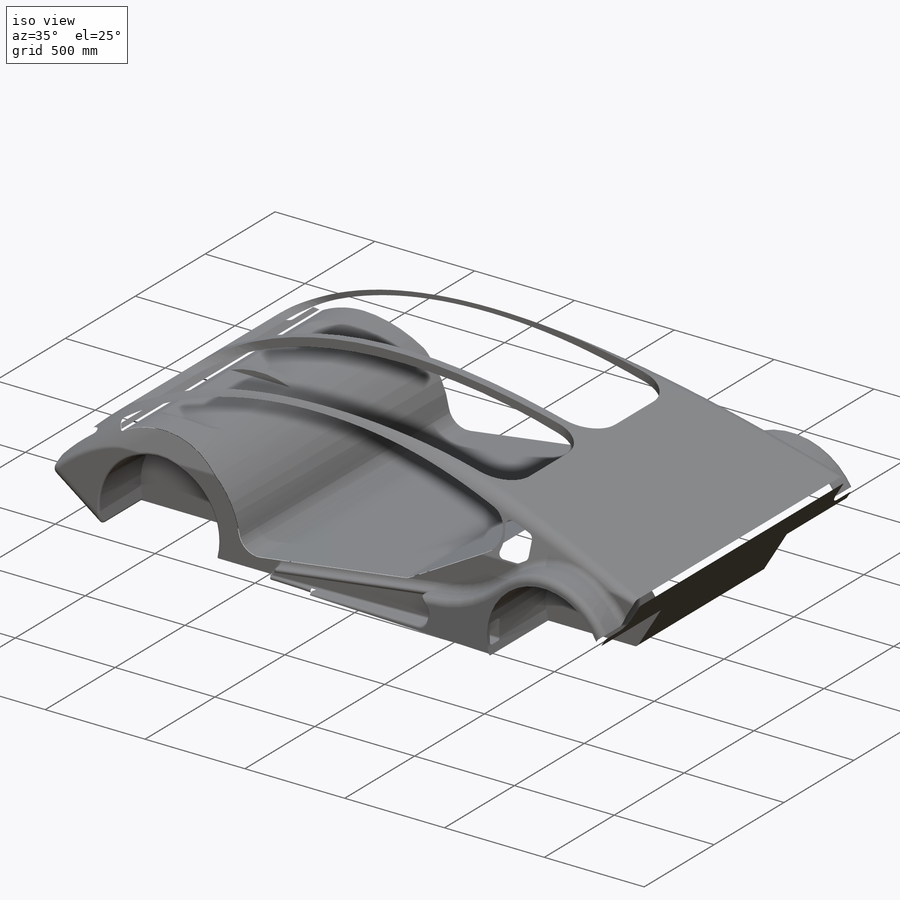
[diagram: iso view]
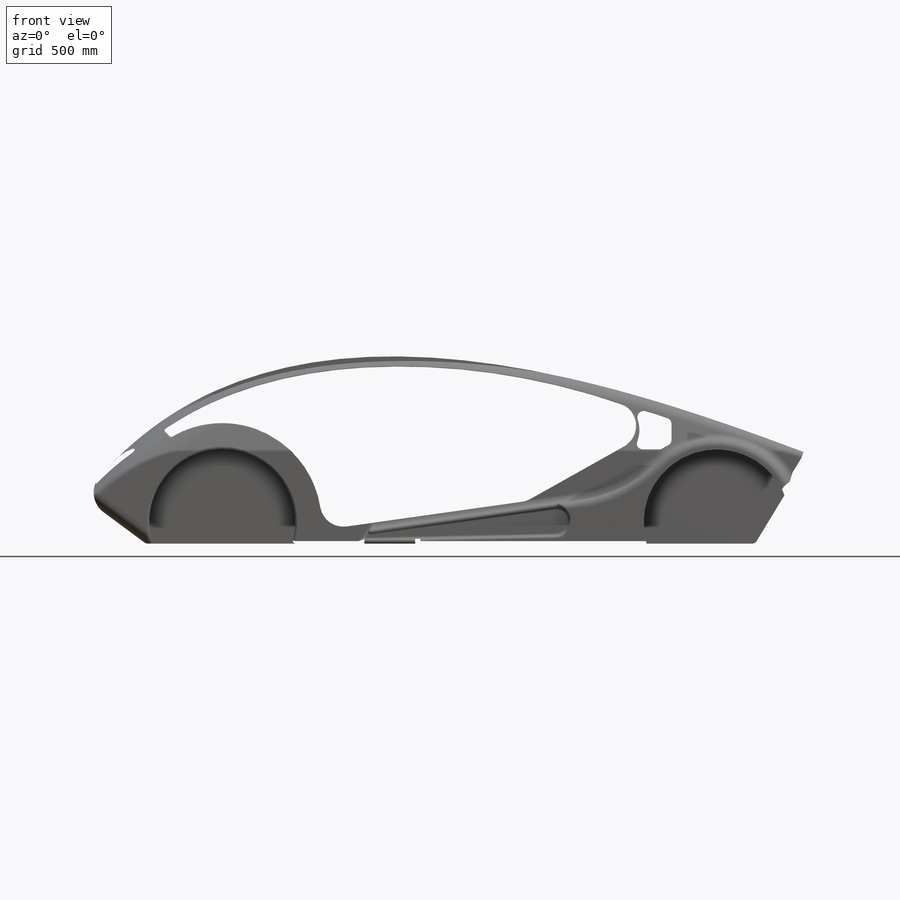
[diagram: front view]
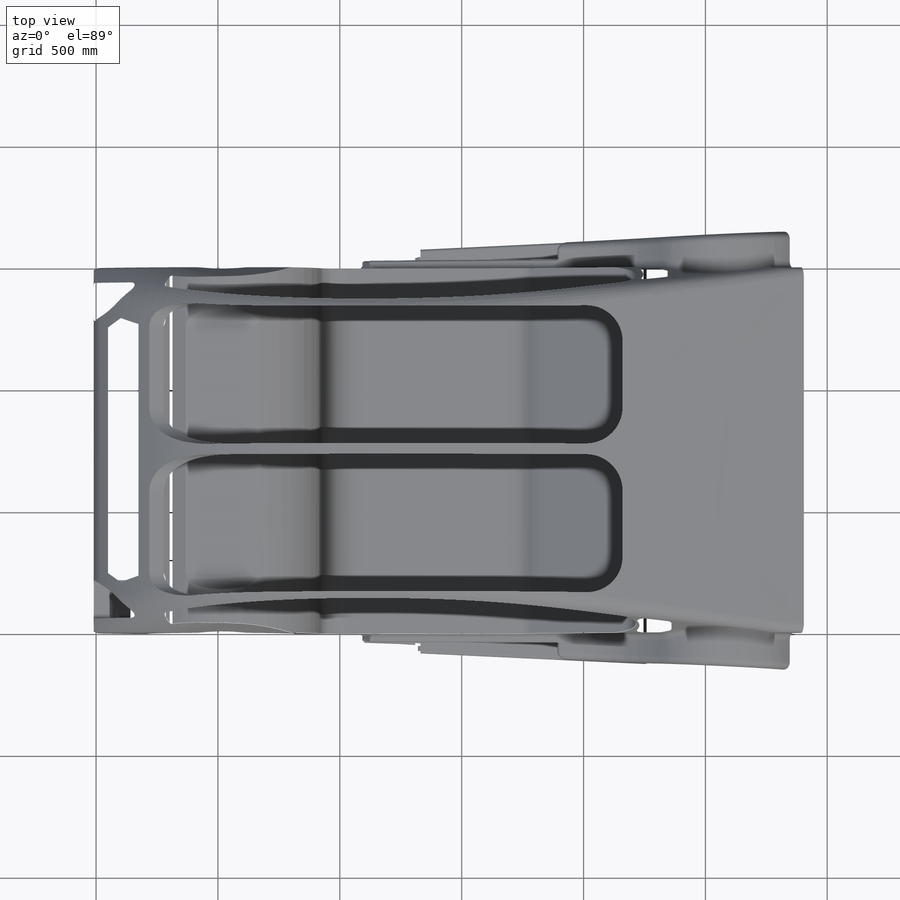
[diagram: top view]
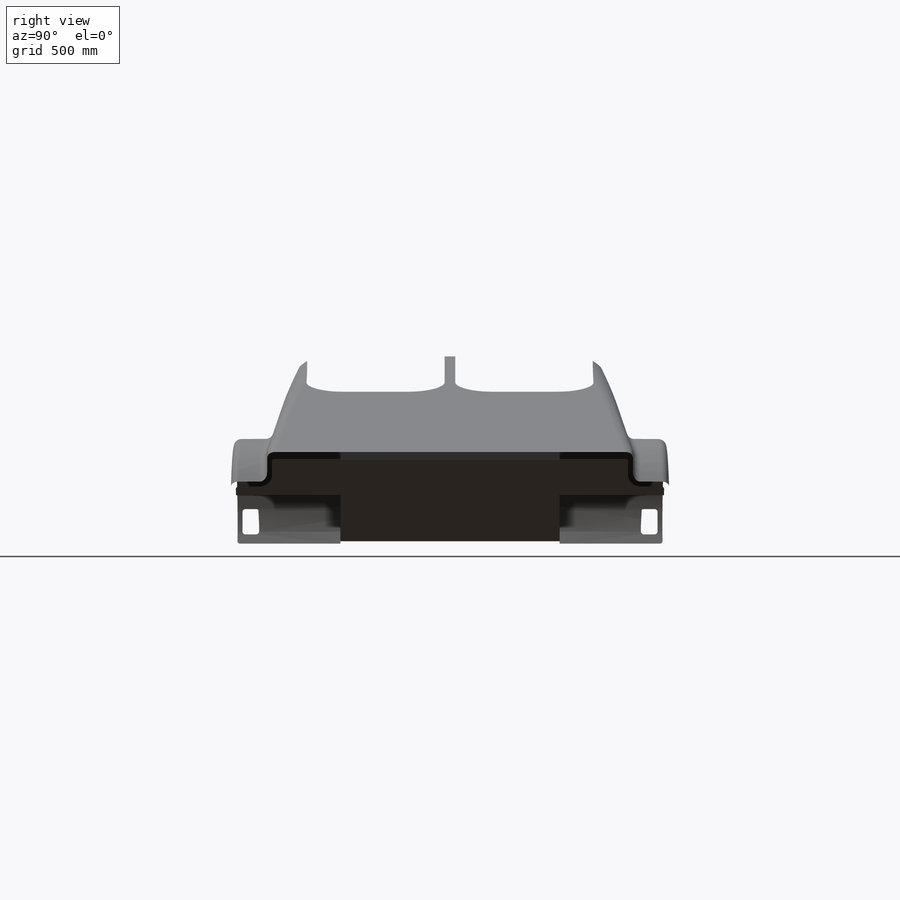
[diagram: right view]
SOLIDWORKS PART (.sldprt)
format: sldprt  version: not decoded by parser v0  size: 4,533,248 bytes
history: native  units: mm
features: fillet x38, sketch x27, cut_extrude x13, extrude x7, plane x7, mirror x5, dome x4, material x1 (+11 scaffold rows collapsed)
feature tree (113):
  scaffold x11  (default folders/planes/origin — collapsed)
  material  "Material <not specified>"
  sketch  "Sketch1"  dims[D1=2500.0mm]
  extrude  "Boss-Extrude1"  Depth=1500mm
  plane  "Plane1"  Offset=1240mm
  sketch  "Sketch2"
  cut_extrude  "Cut-Extrude1"  Depth=3842mm
  sketch  "Sketch3"  dims[D1=600.0mm D2=600.0mm]
  cut_extrude  "Cut-Extrude2"  Depth=300mm
  sketch  "Sketch4"  dims[D1=0.0mm D2=0.0mm]
  cut_extrude  "Cut-Extrude3"  Depth=300mm
  fillet  "Fillet1"  Radius=100mm
  fillet  "Fillet2"  Radius=50mm
  fillet  "Fillet3"  Radius=50mm
  fillet  "Fillet4"  Radius=25mm
  fillet  "Fillet5"  Radius=25mm
  fillet  "Fillet6"  Radius=25mm
  sketch  "Sketch5"  dims[c1.D1=95.0mm c1.D2=95.0mm c2.D1=50.0mm]
  cut_extrude  "Cut-Extrude4"  Depth=2174mm
  sketch  "Sketch6"  dims[D1=95.0mm]
  cut_extrude  "Cut-Extrude5"  Depth=2400mm
  fillet  "Fillet9"  Radius=150mm
  fillet  "Fillet10"  Radius=150mm
  sketch  "Sketch7"  dims[D1=535.0mm]
  extrude  "Boss-Extrude2"  Depth=150mm
  sketch  "Sketch8"  dims[D1=0.0mm]
  extrude  "Boss-Extrude3"  Depth=150mm
  fillet  "Fillet19"  Radius=30mm
  fillet  "Fillet20"  Radius=30mm
  fillet  "Fillet21"  Radius=30mm
  fillet  "Fillet22"  Radius=30mm
  sketch  "Sketch11"
  cut_extrude  "Cut-Extrude7"  Depth=960mm
  fillet  "Fillet23"  Radius=30mm
  fillet  "Fillet24"  Radius=30mm
  fillet  "Fillet25"  Radius=10mm
  fillet  "Fillet26"  Radius=10mm
  fillet  "Fillet27"  Radius=10mm
  fillet  "Fillet28"  Radius=10mm
  plane  "Plane2"  Offset=1240mm
  sketch  "Sketch14"
  cut_extrude  "Cut-Extrude9"  Depth=1212mm
  plane  "Plane3"  Offset=1240mm
  sketch  "Sketch15"  dims[D1=0.0mm]
  cut_extrude  "Cut-Extrude10"  Depth=1212mm
  plane  "Plane4"  Offset=2100mm
  sketch  "Sketch20"  dims[D1=~11.331938mm]
  cut_extrude  "Cut-Extrude11"  Depth=599mm
  fillet  "Fillet29"  Radius=50mm
  fillet  "Fillet30"  Radius=50mm
  fillet  "Fillet31"  Radius=10mm
  fillet  "Fillet32"  Radius=10mm
  fillet  "Fillet33"  Radius=10mm
  fillet  "Fillet36"  Radius=2mm
  fillet  "Fillet38"  Radius=10mm
  fillet  "Fillet39"  Radius=2mm
  fillet  "Fillet40"  Radius=10mm
  fillet  "Fillet41"  Radius=10mm
  fillet  "Fillet42"  Radius=10mm
  fillet  "Fillet43"  Radius=10mm
  fillet  "Fillet44"  Radius=10mm
  sketch  "Sketch21"  dims[D1=~21.331938mm D2=~21.331938mm]
  cut_extrude  "Cut-Extrude12"  Depth=420mm
  sketch  "Sketch22"  dims[D1=40.0mm D2=40.0mm]
  extrude  "Boss-Extrude4"  Depth=65mm
  dome  "Dome1"
  dome  "Dome2"
  dome  "Dome3"
  dome  "Dome4"
  sketch  "Sketch23"  dims[D3=30.0mm D1=0.0mm D2=0.0mm]
  extrude  "Boss-Extrude5"  Depth=40mm
  plane  "Plane5"  Offset=2585mm
  sketch  "Sketch28"
  plane  "Plane7"
  sketch  "Sketch36"  dims[D1=500.0mm D2=500.0mm]
  sketch  "Sketch38"  dims[D1=10.0mm]
  cut_extrude  "Cut-Extrude16"  Depth=1051mm
  plane  "Plane8"  Offset=750mm
  sketch  "Sketch39"  dims[D1=5.0mm]
  extrude  "Boss-Extrude6"  [1 undecoded]
  mirror  "Mirror1"
  fillet  "Fillet45"  Radius=1mm
  fillet  "Fillet48"  Radius=11mm
  fillet  "Fillet49"  Radius=11mm
  fillet  "Fillet50"  Radius=20mm
  fillet  "Fillet51"  Radius=20mm
  fillet  "Fillet52"  Radius=20mm
  fillet  "Fillet53"  Radius=20mm
  sketch  "Sketch40"  dims[D1=60.0mm]
  sketch  "Sketch41"
  mirror  "Split Line2"
  sketch  "Sketch43"
  cut_extrude  "Cut-Extrude17"  Depth=434mm
  sketch  "Sketch44"  dims[D1=0.0mm]
  extrude  "Boss-Extrude8"  Depth=157mm
  sketch  "Sketch45"
  cut_extrude  "Cut-Extrude18"  Depth=2851mm
  sketch  "Sketch48"
  mirror  "Split Line4"
  sketch  "Sketch49"
  mirror  "Split Line5"
  sketch  "Sketch50"
  mirror  "Split Line6"
decode coverage: 74 of 94 modeling features carry decoded parameters
note: ~ marks probable driven/reference dimensions
note: 1 parameter value undecoded
note: suppression state not decoded; provenance and decode notes live in map.json
